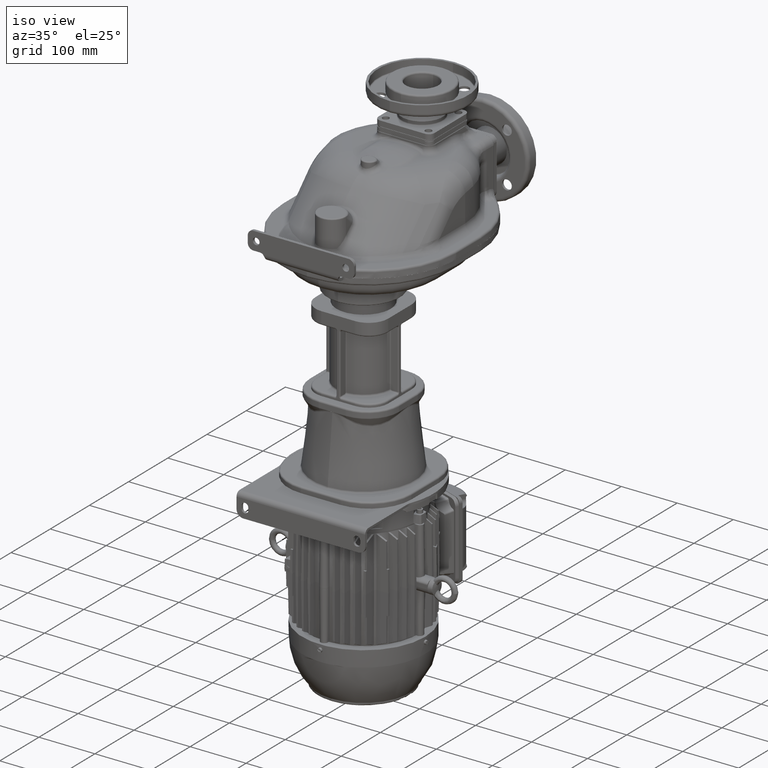
[diagram: clean part render]
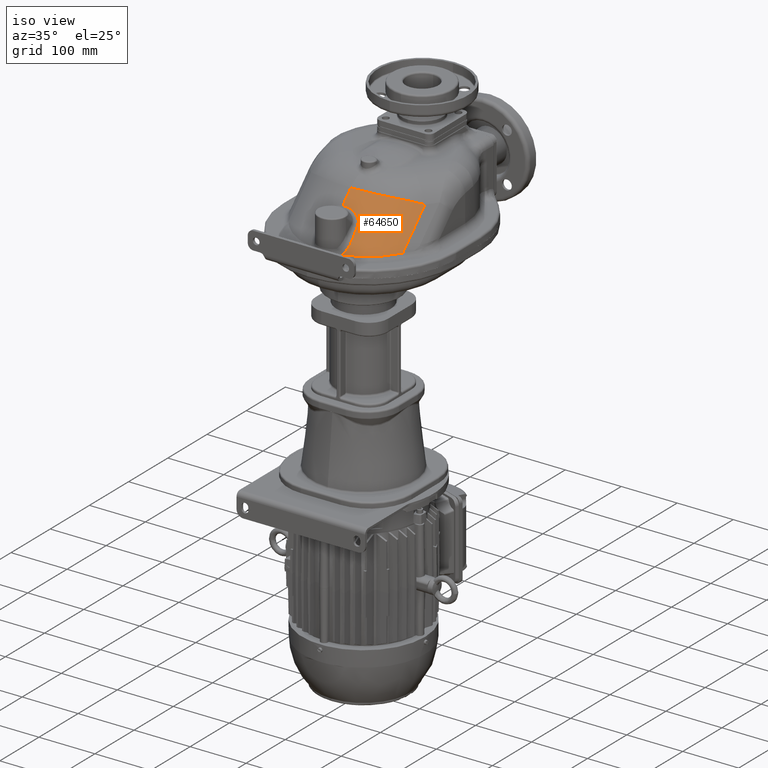
[diagram: same view with one face highlighted and labeled with its STEP entity id]
A machine part, iso view. The second image highlights one B-rep face of the part: STEP entity #64650.
In plain terms, the highlighted face is a SurfaceOfExtrusion surface.
Its self-contained STEP definition (entity closure, byte-faithful):
#3374=CARTESIAN_POINT('',(4.225359777129E1,-8.865028538590E1,3.253648467386E1));
#3375=CARTESIAN_POINT('',(4.230272647808E1,-8.910445967960E1,3.206735414024E1));
#3376=CARTESIAN_POINT('',(4.238364991512E1,-8.998637526525E1,3.116077372445E1));
#3377=CARTESIAN_POINT('',(4.245513230496E1,-9.122090652410E1,2.990437448433E1));
#3378=CARTESIAN_POINT('',(4.248268625662E1,-9.239178036354E1,2.872506375424E1));
#3379=CARTESIAN_POINT('',(4.247042217464E1,-9.351611516539E1,2.760448523158E1));
#3380=CARTESIAN_POINT('',(4.242076526888E1,-9.460739932398E1,2.652839801316E1));
#3381=CARTESIAN_POINT('',(4.233526138370E1,-9.567456874211E1,2.548734391658E1));
#3382=CARTESIAN_POINT('',(4.221499214659E1,-9.672146884931E1,2.447706663006E1));
#3383=CARTESIAN_POINT('',(4.206113353092E1,-9.774910892548E1,2.349608893948E1));
#3384=CARTESIAN_POINT('',(4.187465243945E1,-9.875907171929E1,2.254239911672E1));
#3385=CARTESIAN_POINT('',(4.165633663829E1,-9.975274591838E1,2.161421070097E1));
#3386=CARTESIAN_POINT('',(4.140711609315E1,-1.007301953211E2,2.071099902225E1));
#3387=CARTESIAN_POINT('',(4.112788023599E1,-1.016914922537E2,1.983222580421E1));
#3388=CARTESIAN_POINT('',(4.081952584300E1,-1.026364914765E2,1.897755333914E1));
#3389=CARTESIAN_POINT('',(4.048294611200E1,-1.035649916730E2,1.814668874664E1));
#3390=CARTESIAN_POINT('',(4.011909191549E1,-1.044765399618E2,1.733956442506E1));
#3391=CARTESIAN_POINT('',(3.972892331273E1,-1.053707117381E2,1.655607506907E1));
#3392=CARTESIAN_POINT('',(3.931340299233E1,-1.062470294961E2,1.579616392551E1));
#3393=CARTESIAN_POINT('',(3.887352931134E1,-1.071050046526E2,1.505977128985E1));
#3394=CARTESIAN_POINT('',(3.841027378736E1,-1.079441860638E2,1.434681708985E1));
#3395=CARTESIAN_POINT('',(3.808656122784E1,-1.084907261164E2,1.388713288111E1));
#3396=CARTESIAN_POINT('',(3.792109184854E1,-1.087607932844E2,1.366110569642E1));
#3398=CARTESIAN_POINT('',(4.080452833240E1,-7.455913120477E1,4.705913120477E1));
#3399=CARTESIAN_POINT('',(4.086792782465E1,-7.548580450442E1,4.611398608233E1));
#3400=CARTESIAN_POINT('',(4.102640498456E1,-7.745691561093E1,4.409660271531E1));
#3401=CARTESIAN_POINT('',(4.135835666690E1,-8.074666673672E1,4.070908875820E1));
#3402=CARTESIAN_POINT('',(4.177724107024E1,-8.443056651411E1,3.690041501602E1));
#3403=CARTESIAN_POINT('',(4.209601310986E1,-8.719323990908E1,3.404146957112E1));
#3404=CARTESIAN_POINT('',(4.225359777129E1,-8.865028538590E1,3.253648467386E1));
#3406=CARTESIAN_POINT('',(5.E0,-6.057911738177E1,6.614880467959E1));
#3407=CARTESIAN_POINT('',(5.368596150241E0,-6.054756761221E1,6.618035817544E1));
#3408=CARTESIAN_POINT('',(6.107907406462E0,-6.049001244769E1,6.623472857060E1));
#3409=CARTESIAN_POINT('',(7.225593659112E0,-6.042008070270E1,6.629012479193E1));
#3410=CARTESIAN_POINT('',(8.344567392840E0,-6.036691423640E1,6.631893177029E1));
#3411=CARTESIAN_POINT('',(9.459133599527E0,-6.033088534525E1,6.632095298289E1));
#3412=CARTESIAN_POINT('',(1.056813447670E1,-6.031182062282E1,6.629653666154E1));
#3413=CARTESIAN_POINT('',(1.167551319683E1,-6.030967083988E1,6.624566149710E1));
#3414=CARTESIAN_POINT('',(1.278109517951E1,-6.032441645763E1,6.616837891649E1));
#3415=CARTESIAN_POINT('',(1.388414241522E1,-6.035603957198E1,6.606478612696E1));
#3416=CARTESIAN_POINT('',(1.498061883398E1,-6.040450010694E1,6.593528327537E1));
#3417=CARTESIAN_POINT('',(1.606750307398E1,-6.046960310811E1,6.578048684685E1));
#3418=CARTESIAN_POINT('',(1.714346692865E1,-6.055120782085E1,6.560089258053E1));
#3419=CARTESIAN_POINT('',(1.820651911077E1,-6.064912444714E1,6.539715216869E1));
#3420=CARTESIAN_POINT('',(1.925434305591E1,-6.076305799461E1,6.517012508911E1));
#3421=CARTESIAN_POINT('',(2.028502684924E1,-6.089270682023E1,6.492070148441E1));
#3422=CARTESIAN_POINT('',(2.129685842940E1,-6.103772336746E1,6.464984766789E1));
#3423=CARTESIAN_POINT('',(2.228820520080E1,-6.119774489270E1,6.435858254007E1));
#3424=CARTESIAN_POINT('',(2.325754833246E1,-6.137234200535E1,6.404801904112E1));
#3425=CARTESIAN_POINT('',(2.420351113453E1,-6.156108909023E1,6.371928259324E1));
#3426=CARTESIAN_POINT('',(2.512483985482E1,-6.176349396598E1,6.337357726588E1));
#3427=CARTESIAN_POINT('',(2.602054831186E1,-6.197910436365E1,6.301204816342E1));
#3428=CARTESIAN_POINT('',(2.688978602166E1,-6.220742319864E1,6.263587747186E1));
#3429=CARTESIAN_POINT('',(2.773199570316E1,-6.244800636112E1,6.224615169299E1));
#3430=CARTESIAN_POINT('',(2.854670491178E1,-6.270038786989E1,6.184396358899E1));
#3431=CARTESIAN_POINT('',(2.933350794530E1,-6.296409023107E1,6.143040199987E1));
#3432=CARTESIAN_POINT('',(3.009211300402E1,-6.323863739406E1,6.100652628331E1));
#3433=CARTESIAN_POINT('',(3.082236859135E1,-6.352356827881E1,6.057334277184E1));
#3434=CARTESIAN_POINT('',(3.152419238021E1,-6.381843474932E1,6.013181696504E1));
#3435=CARTESIAN_POINT('',(3.219757437936E1,-6.412277072710E1,5.968290156982E1));
#3436=CARTESIAN_POINT('',(3.284266665850E1,-6.443618272688E1,5.922742359893E1));
#3437=CARTESIAN_POINT('',(3.345976733116E1,-6.475833011193E1,5.876610314823E1));
#3438=CARTESIAN_POINT('',(3.404929049847E1,-6.508893523206E1,5.829954695424E1));
#3439=CARTESIAN_POINT('',(3.461177282257E1,-6.542780582842E1,5.782822172246E1));
#3440=CARTESIAN_POINT('',(3.514759084725E1,-6.577468312080E1,5.735267269346E1));
#3441=CARTESIAN_POINT('',(3.565711976499E1,-6.612930926792E1,5.687342176119E1));
#3442=CARTESIAN_POINT('',(3.614071127613E1,-6.649143102770E1,5.639096972949E1));
#3443=CARTESIAN_POINT('',(3.659873304617E1,-6.686082344170E1,5.590576372870E1));
#3444=CARTESIAN_POINT('',(3.703155856120E1,-6.723727457050E1,5.541821527243E1));
#3445=CARTESIAN_POINT('',(3.743956117942E1,-6.762061462144E1,5.492867319207E1));
#3446=CARTESIAN_POINT('',(3.782310533607E1,-6.801067578082E1,5.443746673196E1));
#3447=CARTESIAN_POINT('',(3.818252946016E1,-6.840731976273E1,5.394488327804E1));
#3448=CARTESIAN_POINT('',(3.851810120750E1,-6.881034191112E1,5.345127744402E1));
#3449=CARTESIAN_POINT('',(3.883007828050E1,-6.921955681616E1,5.295697025293E1));
#3450=CARTESIAN_POINT('',(3.911866459925E1,-6.963471939496E1,5.246234071172E1));
#3451=CARTESIAN_POINT('',(3.938410154699E1,-7.005563551667E1,5.196769074688E1));
#3452=CARTESIAN_POINT('',(3.962662557595E1,-7.048215942156E1,5.147325952440E1));
#3453=CARTESIAN_POINT('',(3.984649125456E1,-7.091418289327E1,5.097922818843E1));
#3454=CARTESIAN_POINT('',(4.004392310399E1,-7.135168600218E1,5.048568301145E1));
#3455=CARTESIAN_POINT('',(4.021909618174E1,-7.179454079744E1,4.999281788769E1));
#3456=CARTESIAN_POINT('',(4.037208870906E1,-7.224253365450E1,4.950092638922E1));
#3457=CARTESIAN_POINT('',(4.050309830111E1,-7.269570596999E1,4.900999941002E1));
#3458=CARTESIAN_POINT('',(4.061224191511E1,-7.315431347521E1,4.851982315592E1));
#3459=CARTESIAN_POINT('',(4.069949647084E1,-7.361797123324E1,4.803085240469E1));
#3460=CARTESIAN_POINT('',(4.076479275773E1,-7.408623266672E1,4.754360381527E1));
#3461=CARTESIAN_POINT('',(4.079371013577E1,-7.440103583064E1,4.722037910160E1));
#3462=CARTESIAN_POINT('',(4.080452833240E1,-7.455913120477E1,4.705913120477E1));
#3464=DIRECTION('',(0.E0,7.071067811865E-1,7.071067811865E-1));
#3465=VECTOR('',#3464,2.948447187635E1);
#3466=CARTESIAN_POINT('',(5.E0,-6.057911738177E1,6.614880467959E1));
#3467=LINE('',#3466,#3465);
#3468=CARTESIAN_POINT('',(5.E0,-3.973044737830E1,8.699747468306E1));
#3469=CARTESIAN_POINT('',(6.034536997938E0,-3.973044697408E1,8.699747469583E1));
#3470=CARTESIAN_POINT('',(8.104642207348E0,-3.971020905824E1,8.699262854527E1));
#3471=CARTESIAN_POINT('',(1.121122971413E1,-3.961899000533E1,8.697075087034E1));
#3472=CARTESIAN_POINT('',(1.431690827398E1,-3.946686811769E1,8.693417030181E1));
#3473=CARTESIAN_POINT('',(1.741953993564E1,-3.925388291458E1,8.688278832285E1));
#3474=CARTESIAN_POINT('',(2.051707996895E1,-3.898016201200E1,8.681647800851E1));
#3475=CARTESIAN_POINT('',(2.360749325080E1,-3.864594801399E1,8.673506029614E1));
#3476=CARTESIAN_POINT('',(2.668873802066E1,-3.825155192240E1,8.663835029919E1));
#3477=CARTESIAN_POINT('',(2.975866897294E1,-3.779741843352E1,8.652611822071E1));
#3478=CARTESIAN_POINT('',(3.281576466400E1,-3.728396363557E1,8.639810146397E1));
#3479=CARTESIAN_POINT('',(3.585869311218E1,-3.671161974538E1,8.625398395780E1));
#3480=CARTESIAN_POINT('',(3.888619113303E1,-3.608085930181E1,8.609338008173E1));
#3481=CARTESIAN_POINT('',(4.189648301819E1,-3.539227911530E1,8.591591515637E1));
#3482=CARTESIAN_POINT('',(4.488745218995E1,-3.464667889660E1,8.572116520836E1));
#3483=CARTESIAN_POINT('',(4.785707835807E1,-3.384490022087E1,8.550870674300E1));
#3484=CARTESIAN_POINT('',(5.080331856760E1,-3.298792763258E1,8.527804727938E1));
#3485=CARTESIAN_POINT('',(5.372413694279E1,-3.207681660695E1,8.502869333773E1));
#3486=CARTESIAN_POINT('',(5.661751473908E1,-3.111274677118E1,8.476008875699E1));
#3487=CARTESIAN_POINT('',(5.948100341886E1,-3.009714096368E1,8.447171160382E1));
#3488=CARTESIAN_POINT('',(6.231228534014E1,-2.903153489224E1,8.416299183671E1));
#3489=CARTESIAN_POINT('',(6.510875905877E1,-2.791770935325E1,8.383338433823E1));
#3490=CARTESIAN_POINT('',(6.786785067322E1,-2.675760543909E1,8.348233255773E1));
#3491=CARTESIAN_POINT('',(7.058673112656E1,-2.555345113422E1,8.310931543531E1));
#3492=CARTESIAN_POINT('',(7.326253857441E1,-2.430768648614E1,8.271383898104E1));
#3493=CARTESIAN_POINT('',(7.589222447914E1,-2.302305300995E1,8.229547096438E1));
#3494=CARTESIAN_POINT('',(7.847275758879E1,-2.170251547091E1,8.185383044742E1));
#3495=CARTESIAN_POINT('',(8.100104618230E1,-2.034930795805E1,8.138861933260E1));
#3496=CARTESIAN_POINT('',(8.347404657274E1,-1.896688940009E1,8.089962322698E1));
#3497=CARTESIAN_POINT('',(8.588874384936E1,-1.755894913735E1,8.038674466963E1));
#3498=CARTESIAN_POINT('',(8.824222347652E1,-1.612937604311E1,7.985000305098E1));
#3499=CARTESIAN_POINT('',(9.053166131765E1,-1.468226763840E1,7.928955832984E1));
#3500=CARTESIAN_POINT('',(9.275463036059E1,-1.322169592493E1,7.870567951736E1));
#3501=CARTESIAN_POINT('',(9.490887530533E1,-1.175184467292E1,7.809879031884E1));
#3502=CARTESIAN_POINT('',(9.699244807655E1,-1.027695406452E1,7.746939042751E1));
#3503=CARTESIAN_POINT('',(9.900338254652E1,-8.801316502194E0,7.681840041034E1));
#3504=CARTESIAN_POINT('',(1.009407496669E2,-7.328805567493E0,7.614650618843E1));
#3505=CARTESIAN_POINT('',(1.028045519849E2,-5.862577646732E0,7.545434474524E1));
#3506=CARTESIAN_POINT('',(1.045947215127E2,-4.406037376131E0,7.474257990403E1));
#3507=CARTESIAN_POINT('',(1.063113094864E2,-2.962182554692E0,7.401237938289E1));
#3508=CARTESIAN_POINT('',(1.079543053936E2,-1.533705385553E0,7.326553613114E1));
#3509=CARTESIAN_POINT('',(1.090003938537E2,-5.946815742922E-1,
7.275697677224E1));
#3510=CARTESIAN_POINT('',(1.095115623588E2,-1.287565176259E-1,7.25E1));
#3512=DIRECTION('',(-4.160645979085E-8,-7.071067517651E-1,-7.071068106080E-1));
#3513=VECTOR('',#3512,7.990306627401E1);
#3514=CARTESIAN_POINT('',(1.095115623588E2,-1.287565176259E-1,7.25E1));
#3515=LINE('',#3514,#3513);
#3516=CARTESIAN_POINT('',(1.095115623587E2,-5.662875651763E1,1.6E1));
#3517=CARTESIAN_POINT('',(1.090039263959E2,-5.739033927039E1,1.595629833886E1));
#3518=CARTESIAN_POINT('',(1.079745002439E2,-5.890051987191E1,1.587059921102E1));
#3519=CARTESIAN_POINT('',(1.063885317633E2,-6.112636996382E1,1.574676157057E1));
#3520=CARTESIAN_POINT('',(1.047614761047E2,-6.331223447142E1,1.562760490647E1));
#3521=CARTESIAN_POINT('',(1.030940561353E2,-6.545760114460E1,1.551298106102E1));
#3522=CARTESIAN_POINT('',(1.013869851564E2,-6.756196314381E1,1.540279079421E1));
#3523=CARTESIAN_POINT('',(9.964096533427E1,-6.962480383992E1,1.529696069391E1));
#3524=CARTESIAN_POINT('',(9.785667313635E1,-7.164570096389E1,1.519536260059E1));
#3525=CARTESIAN_POINT('',(9.603464403248E1,-7.362441267536E1,1.509783448501E1));
#3526=CARTESIAN_POINT('',(9.417537447078E1,-7.556068889779E1,1.500423987826E1));
#3527=CARTESIAN_POINT('',(9.227947327320E1,-7.745413471419E1,1.491445827130E1));
#3528=CARTESIAN_POINT('',(9.034773730828E1,-7.930416707674E1,1.482838817438E1));
#3529=CARTESIAN_POINT('',(8.838092105638E1,-8.111024627716E1,1.474594711738E1));
#3530=CARTESIAN_POINT('',(8.637981655424E1,-8.287186833472E1,1.466700173034E1));
#3531=CARTESIAN_POINT('',(8.434522589538E1,-8.458853513860E1,1.459142608726E1));
#3532=CARTESIAN_POINT('',(8.227794528924E1,-8.625975359984E1,1.451911367818E1));
#3533=CARTESIAN_POINT('',(8.017879682632E1,-8.788501326112E1,1.444997459657E1));
#3534=CARTESIAN_POINT('',(7.804860770072E1,-8.946380588596E1,1.438393328054E1));
#3535=CARTESIAN_POINT('',(7.588819727984E1,-9.099562391779E1,1.432093840772E1));
#3536=CARTESIAN_POINT('',(7.369831430951E1,-9.248008991612E1,1.426087036716E1));
#3537=CARTESIAN_POINT('',(7.147969640409E1,-9.391682923959E1,1.420362108997E1));
#3538=CARTESIAN_POINT('',(6.923311270827E1,-9.530543437481E1,1.414910158025E1));
#3539=CARTESIAN_POINT('',(6.695957378518E1,-9.664535245746E1,1.409724408525E1));
#3540=CARTESIAN_POINT('',(6.466009204482E1,-9.793605136859E1,1.404799508629E1));
#3541=CARTESIAN_POINT('',(6.233562144868E1,-9.917704448678E1,1.400131724558E1));
#3542=CARTESIAN_POINT('',(5.998701253554E1,-1.003679813396E2,1.395711057371E1));
#3543=CARTESIAN_POINT('',(5.761511998130E1,-1.015085037625E2,1.391529279950E1));
#3544=CARTESIAN_POINT('',(5.522090048293E1,-1.025982044891E2,1.387579945428E1));
#3545=CARTESIAN_POINT('',(5.280543097937E1,-1.036366329807E2,1.383858329637E1));
#3546=CARTESIAN_POINT('',(5.036978514943E1,-1.046233568412E2,1.380361343172E1));
#3547=CARTESIAN_POINT('',(4.791495390966E1,-1.055579940909E2,1.377086811306E1));
#3548=CARTESIAN_POINT('',(4.544191507518E1,-1.064402488516E2,1.374026556798E1));
#3549=CARTESIAN_POINT('',(4.295166151459E1,-1.072698165729E2,1.371174514765E1));
#3550=CARTESIAN_POINT('',(4.044517984290E1,-1.080464085670E2,1.368526193571E1));
#3551=CARTESIAN_POINT('',(3.876404696494E1,-1.085286042557E2,1.366894165047E1));
#3552=CARTESIAN_POINT('',(3.792111471783E1,-1.087607819797E2,1.366111813131E1));
#52140=CARTESIAN_POINT('',(1.095115623588E2,-1.287565176259E-1,7.25E1));
#52142=VERTEX_POINT('',#52140);
#52178=VERTEX_POINT('',#3468);
#52389=VERTEX_POINT('',#3374);
#52390=VERTEX_POINT('',#3396);
#52391=VERTEX_POINT('',#3398);
#52393=VERTEX_POINT('',#3406);
#52464=CARTESIAN_POINT('',(1.095115590343E2,-5.662875416671E1,
1.599999764918E1));
#52465=VERTEX_POINT('',#52464);
#64628=CARTESIAN_POINT('',(5.E0,-6.272792206136E1,-6.4E1));
#64629=DIRECTION('',(0.E0,7.071067811865E-1,7.071067811865E-1));
#64630=DIRECTION('',(0.E0,-7.071067811865E-1,7.071067811865E-1));
#64631=AXIS2_PLACEMENT_3D('',#64628,#64629,#64630);
#64636=DIRECTION('',(0.E0,7.071067811865E-1,7.071067811865E-1));
#64637=VECTOR('',#64636,1.E0);
#64638=SURFACE_OF_LINEAR_EXTRUSION('',#64632,#64637);
#64640=ORIENTED_EDGE('',*,*,#64639,.F.);
#64642=ORIENTED_EDGE('',*,*,#64641,.F.);
#64643=ORIENTED_EDGE('',*,*,#64612,.F.);
#64644=ORIENTED_EDGE('',*,*,#64347,.T.);
#64645=ORIENTED_EDGE('',*,*,#60660,.T.);
#64646=ORIENTED_EDGE('',*,*,#63762,.T.);
#64647=ORIENTED_EDGE('',*,*,#63839,.T.);
#64648=EDGE_LOOP('',(#64640,#64642,#64643,#64644,#64645,#64646,#64647));
#64649=FACE_OUTER_BOUND('',#64648,.F.);
#3397=B_SPLINE_CURVE_WITH_KNOTS('',3,(#3374,#3375,#3376,#3377,#3378,#3379,#3380,
#3381,#3382,#3383,#3384,#3385,#3386,#3387,#3388,#3389,#3390,#3391,#3392,#3393,
#3394,#3395,#3396),.UNSPECIFIED.,.F.,.F.,(4,1,1,1,1,1,1,1,1,1,1,1,1,1,1,1,1,1,1,
1,4),(0.E0,5.E-2,1.E-1,1.5E-1,2.E-1,2.5E-1,3.E-1,3.5E-1,4.E-1,4.5E-1,5.E-1,
5.5E-1,6.E-1,6.5E-1,7.E-1,7.5E-1,8.E-1,8.5E-1,9.E-1,9.5E-1,1.E0),.UNSPECIFIED.);
#3405=B_SPLINE_CURVE_WITH_KNOTS('',3,(#3398,#3399,#3400,#3401,#3402,#3403,
#3404),.UNSPECIFIED.,.F.,.F.,(4,1,1,1,4),(0.E0,2.5E-1,5.E-1,7.5E-1,1.E0),
.UNSPECIFIED.);
#3463=B_SPLINE_CURVE_WITH_KNOTS('',3,(#3406,#3407,#3408,#3409,#3410,#3411,#3412,
#3413,#3414,#3415,#3416,#3417,#3418,#3419,#3420,#3421,#3422,#3423,#3424,#3425,
#3426,#3427,#3428,#3429,#3430,#3431,#3432,#3433,#3434,#3435,#3436,#3437,#3438,
#3439,#3440,#3441,#3442,#3443,#3444,#3445,#3446,#3447,#3448,#3449,#3450,#3451,
#3452,#3453,#3454,#3455,#3456,#3457,#3458,#3459,#3460,#3461,#3462),
.UNSPECIFIED.,.F.,.F.,(4,1,1,1,1,1,1,1,1,1,1,1,1,1,1,1,1,1,1,1,1,1,1,1,1,1,1,1,
1,1,1,1,1,1,1,1,1,1,1,1,1,1,1,1,1,1,1,1,1,1,1,1,1,1,4),(0.E0,1.851851851852E-2,
3.703703703704E-2,5.555555555556E-2,7.407407407407E-2,9.259259259259E-2,
1.111111111111E-1,1.296296296296E-1,1.481481481481E-1,1.666666666667E-1,
1.851851851852E-1,2.037037037037E-1,2.222222222222E-1,2.407407407407E-1,
2.592592592593E-1,2.777777777778E-1,2.962962962963E-1,3.148148148148E-1,
3.333333333333E-1,3.518518518519E-1,3.703703703704E-1,3.888888888889E-1,
4.074074074074E-1,4.259259259259E-1,4.444444444444E-1,4.629629629630E-1,
4.814814814815E-1,5.E-1,5.185185185185E-1,5.370370370370E-1,5.555555555556E-1,
5.740740740741E-1,5.925925925926E-1,6.111111111111E-1,6.296296296296E-1,
6.481481481481E-1,6.666666666667E-1,6.851851851852E-1,7.037037037037E-1,
7.222222222222E-1,7.407407407407E-1,7.592592592593E-1,7.777777777778E-1,
7.962962962963E-1,8.148148148148E-1,8.333333333333E-1,8.518518518519E-1,
8.703703703704E-1,8.888888888889E-1,9.074074074074E-1,9.259259259259E-1,
9.444444444444E-1,9.629629629630E-1,9.814814814815E-1,1.E0),.UNSPECIFIED.);
#3511=B_SPLINE_CURVE_WITH_KNOTS('',3,(#3468,#3469,#3470,#3471,#3472,#3473,#3474,
#3475,#3476,#3477,#3478,#3479,#3480,#3481,#3482,#3483,#3484,#3485,#3486,#3487,
#3488,#3489,#3490,#3491,#3492,#3493,#3494,#3495,#3496,#3497,#3498,#3499,#3500,
#3501,#3502,#3503,#3504,#3505,#3506,#3507,#3508,#3509,#3510),.UNSPECIFIED.,.F.,
.F.,(4,1,1,1,1,1,1,1,1,1,1,1,1,1,1,1,1,1,1,1,1,1,1,1,1,1,1,1,1,1,1,1,1,1,1,1,1,
1,1,1,4),(0.E0,2.5E-2,5.E-2,7.5E-2,1.E-1,1.25E-1,1.5E-1,1.75E-1,2.E-1,2.25E-1,
2.5E-1,2.75E-1,3.E-1,3.25E-1,3.5E-1,3.75E-1,4.E-1,4.25E-1,4.5E-1,4.75E-1,5.E-1,
5.25E-1,5.5E-1,5.75E-1,6.E-1,6.25E-1,6.5E-1,6.75E-1,7.E-1,7.25E-1,7.5E-1,
7.75E-1,8.E-1,8.25E-1,8.5E-1,8.75E-1,9.E-1,9.25E-1,9.5E-1,9.75E-1,1.E0),
.UNSPECIFIED.);
#3553=B_SPLINE_CURVE_WITH_KNOTS('',3,(#3516,#3517,#3518,#3519,#3520,#3521,#3522,
#3523,#3524,#3525,#3526,#3527,#3528,#3529,#3530,#3531,#3532,#3533,#3534,#3535,
#3536,#3537,#3538,#3539,#3540,#3541,#3542,#3543,#3544,#3545,#3546,#3547,#3548,
#3549,#3550,#3551,#3552),.UNSPECIFIED.,.F.,.F.,(4,1,1,1,1,1,1,1,1,1,1,1,1,1,1,1,
1,1,1,1,1,1,1,1,1,1,1,1,1,1,1,1,1,1,4),(0.E0,2.941176470588E-2,
5.882352941176E-2,8.823529411765E-2,1.176470588235E-1,1.470588235294E-1,
1.764705882353E-1,2.058823529412E-1,2.352941176471E-1,2.647058823529E-1,
2.941176470588E-1,3.235294117647E-1,3.529411764706E-1,3.823529411765E-1,
4.117647058824E-1,4.411764705882E-1,4.705882352941E-1,5.E-1,5.294117647059E-1,
5.588235294118E-1,5.882352941176E-1,6.176470588235E-1,6.470588235294E-1,
6.764705882353E-1,7.058823529412E-1,7.352941176471E-1,7.647058823529E-1,
7.941176470588E-1,8.235294117647E-1,8.529411764706E-1,8.823529411765E-1,
9.117647058824E-1,9.411764705882E-1,9.705882352941E-1,1.E0),.UNSPECIFIED.);
#60660=EDGE_CURVE('',#52178,#52142,#3511,.T.);
#63762=EDGE_CURVE('',#52142,#52465,#3515,.T.);
#63839=EDGE_CURVE('',#52465,#52390,#3553,.T.);
#64347=EDGE_CURVE('',#52393,#52178,#3467,.T.);
#64612=EDGE_CURVE('',#52393,#52391,#3463,.T.);
#64632=ELLIPSE('',#64631,9.050966799188E1,1.28E2);
#64639=EDGE_CURVE('',#52389,#52390,#3397,.T.);
#64641=EDGE_CURVE('',#52391,#52389,#3405,.T.);
#64650=ADVANCED_FACE('',(#64649),#64638,.T.);